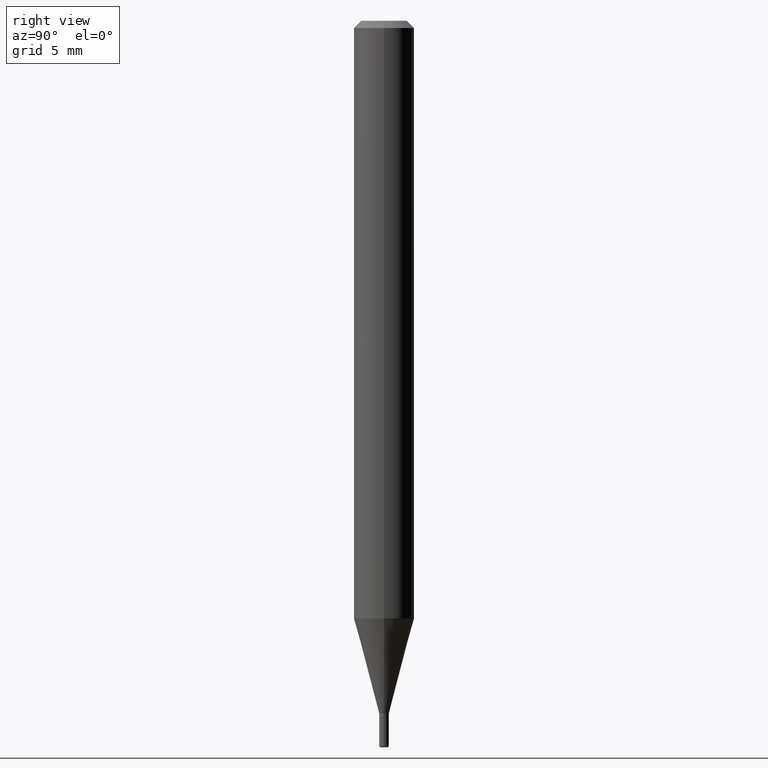
[diagram: clean part render]
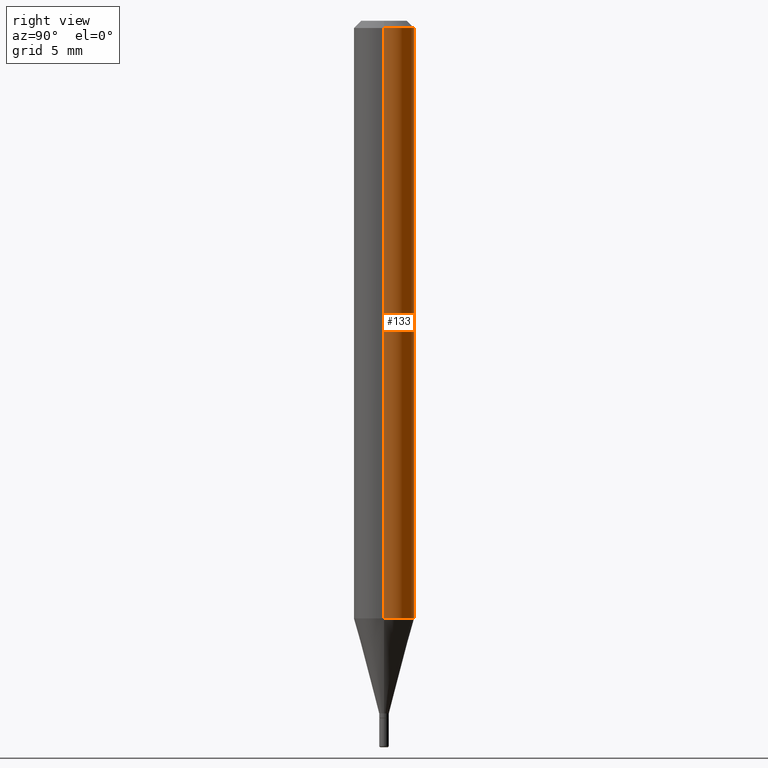
[diagram: same view with one face highlighted and labeled with its STEP entity id]
A machine part, right view. The second image highlights one B-rep face of the part: STEP entity #133.
In plain terms, the highlighted cylindrical surface (edge-blend (fillet) strip) has radius 1.5875 mm, axis along (-0, 0, 1).
Its self-contained STEP definition (entity closure, byte-faithful):
#1 = CARTESIAN_POINT ( 'NONE',  ( 0.06250000000000001388, -4.745158230013424344E-15, -1.234067332602633682 ) ) ;
#4 = DIRECTION ( 'NONE',  ( -2.445468806185136597E-29, 3.491481338843145583E-15, 1.000000000000000000 ) ) ;
#21 = EDGE_CURVE ( 'NONE', #242, #35, #110, .T. ) ;
#35 = VERTEX_POINT ( 'NONE', #508 ) ;
#51 = DIRECTION ( 'NONE',  ( 1.000000000000000000, -6.982962677686266711E-15, 4.876176775795935793E-29 ) ) ;
#59 = DIRECTION ( 'NONE',  ( -2.445468806185136877E-29, 3.491481338843145188E-15, 1.000000000000000000 ) ) ;
#110 = LINE ( 'NONE', #158, #255 ) ;
#117 = ORIENTED_EDGE ( 'NONE', *, *, #21, .F. ) ;
#120 = ORIENTED_EDGE ( 'NONE', *, *, #424, .F. ) ;
#133 = ADVANCED_FACE ( 'NONE', ( #365 ), #458, .T. ) ;
#151 = ORIENTED_EDGE ( 'NONE', *, *, #153, .T. ) ;
#153 = EDGE_CURVE ( 'NONE', #310, #214, #184, .T. ) ;
#158 = CARTESIAN_POINT ( 'NONE',  ( 0.06250000000000000000, -4.364351673553916694E-16, 3.047610484872459871E-30 ) ) ;
#184 = LINE ( 'NONE', #228, #340 ) ;
#210 = CARTESIAN_POINT ( 'NONE',  ( 3.017873166611838401E-29, -4.308723062658033463E-15, -1.234067332602633682 ) ) ;
#214 = VERTEX_POINT ( 'NONE', #409 ) ;
#228 = CARTESIAN_POINT ( 'NONE',  ( -0.06250000000000000000, 4.440892098500626162E-16, -3.074334431409316114E-30 ) ) ;
#242 = VERTEX_POINT ( 'NONE', #1 ) ;
#246 = AXIS2_PLACEMENT_3D ( 'NONE', #307, #326, #51 ) ;
#251 = CIRCLE ( 'NONE', #406, 0.06250000000000000000 ) ;
#255 = VECTOR ( 'NONE', #272, 39.37007874015748143 ) ;
#262 = CIRCLE ( 'NONE', #429, 0.06250000000000000000 ) ;
#263 = DIRECTION ( 'NONE',  ( 1.000000000000000000, -6.982962677686266711E-15, 0.000000000000000000 ) ) ;
#272 = DIRECTION ( 'NONE',  ( -2.445468806185136877E-29, 3.491481338843145188E-15, 1.000000000000000000 ) ) ;
#280 = CARTESIAN_POINT ( 'NONE',  ( -0.06250000000000001388, -3.864633852807970058E-15, -1.234067332602633682 ) ) ;
#307 = CARTESIAN_POINT ( 'NONE',  ( 0.000000000000000000, 0.000000000000000000, 0.000000000000000000 ) ) ;
#310 = VERTEX_POINT ( 'NONE', #280 ) ;
#326 = DIRECTION ( 'NONE',  ( -2.445468806185136597E-29, 3.491481338843145583E-15, 1.000000000000000000 ) ) ;
#332 = ORIENTED_EDGE ( 'NONE', *, *, #373, .T. ) ;
#339 = CARTESIAN_POINT ( 'NONE',  ( 3.668203209277632395E-31, -5.237222008264614861E-17, -0.01499999999999970281 ) ) ;
#340 = VECTOR ( 'NONE', #59, 39.37007874015748143 ) ;
#365 = FACE_OUTER_BOUND ( 'NONE', #511, .T. ) ;
#373 = EDGE_CURVE ( 'NONE', #242, #310, #251, .T. ) ;
#406 = AXIS2_PLACEMENT_3D ( 'NONE', #210, #4, #486 ) ;
#409 = CARTESIAN_POINT ( 'NONE',  ( -0.06250000000000000000, -1.736458431520276866E-15, -0.01499999999999970281 ) ) ;
#416 = DIRECTION ( 'NONE',  ( -2.445468806185136597E-29, 3.491481338843145583E-15, 1.000000000000000000 ) ) ;
#424 = EDGE_CURVE ( 'NONE', #35, #214, #262, .T. ) ;
#429 = AXIS2_PLACEMENT_3D ( 'NONE', #339, #416, #263 ) ;
#458 = CYLINDRICAL_SURFACE ( 'NONE', #246, 0.06250000000000000000 ) ;
#486 = DIRECTION ( 'NONE',  ( 1.000000000000000000, -6.982962677686262766E-15, 0.000000000000000000 ) ) ;
#508 = CARTESIAN_POINT ( 'NONE',  ( 0.06250000000000000000, -4.888073874380378612E-16, -0.01499999999999970281 ) ) ;
#511 = EDGE_LOOP ( 'NONE', ( #332, #151, #120, #117 ) ) ;